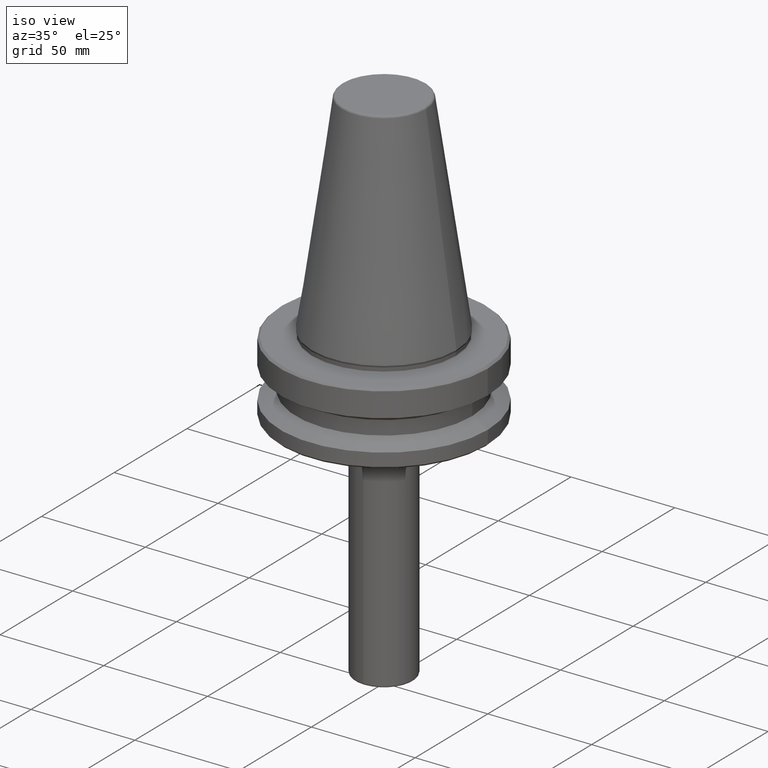
[diagram: clean part render]
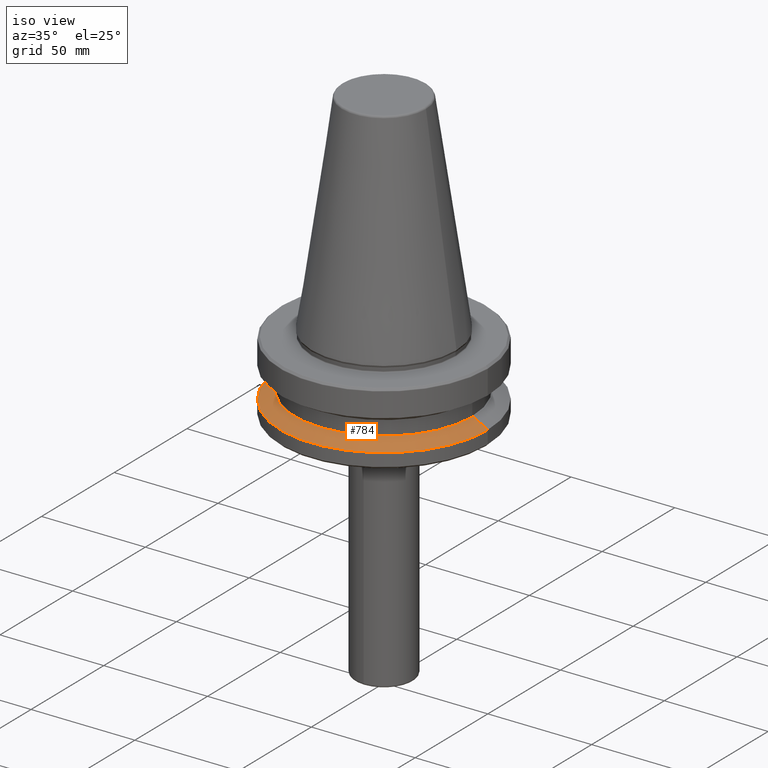
[diagram: same view with one face highlighted and labeled with its STEP entity id]
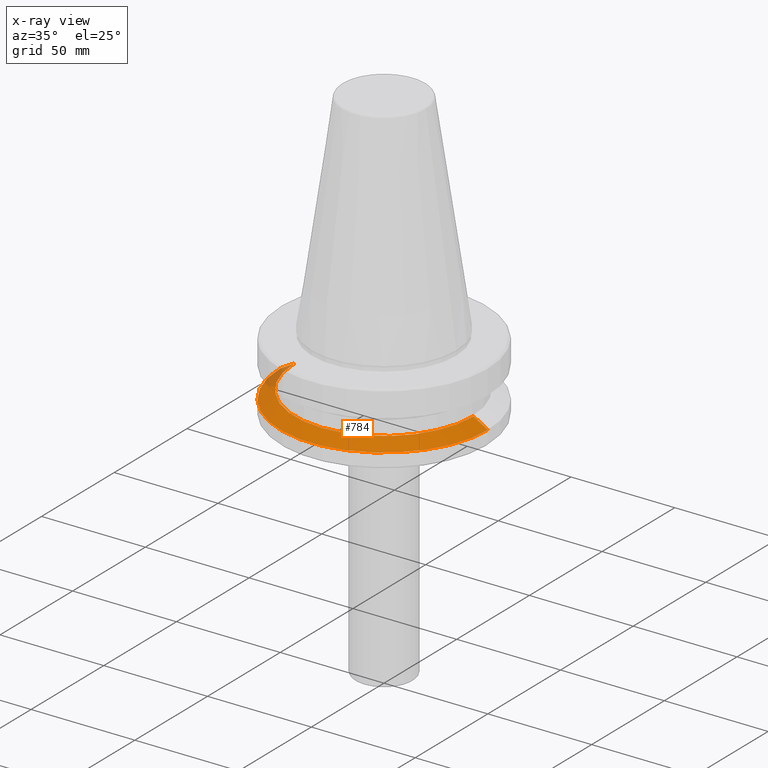
[diagram: x-ray of the same camera — body ghosted, the highlighted face saturated]
A machine part, iso view. The second image highlights one B-rep face of the part: STEP entity #784.
The next image is the same camera in x-ray: the body ghosted, the highlighted face saturated — about 4% of this face is hidden behind the body in this view.
In plain terms, the highlighted conical surface has half-angle 60 deg.
Its self-contained STEP definition (entity closure, byte-faithful):
#31 = ORIENTED_EDGE ( 'NONE', *, *, #615, .F. ) ;
#47 = DIRECTION ( 'NONE',  ( 0.8660254037844396000, 1.060575238724908000E-016, -0.4999999999999983900 ) ) ;
#79 = VERTEX_POINT ( 'NONE', #959 ) ;
#112 = ORIENTED_EDGE ( 'NONE', *, *, #603, .T. ) ;
#193 = CARTESIAN_POINT ( 'NONE',  ( 43.07217782649103600, 5.699027233244276000E-015, -26.70000000000000300 ) ) ;
#228 = AXIS2_PLACEMENT_3D ( 'NONE', #631, #257, #906 ) ;
#257 = DIRECTION ( 'NONE',  ( -0.0000000000000000000, -0.0000000000000000000, 1.000000000000000000 ) ) ;
#298 = DIRECTION ( 'NONE',  ( -1.000000000000000000, 0.0000000000000000000, 0.0000000000000000000 ) ) ;
#331 = EDGE_CURVE ( 'NONE', #862, #1073, #740, .T. ) ;
#384 = CARTESIAN_POINT ( 'NONE',  ( 43.07217782649103600, 5.274820470751785100E-015, -26.70000000000000300 ) ) ;
#394 = AXIS2_PLACEMENT_3D ( 'NONE', #1063, #506, #1156 ) ;
#404 = CIRCLE ( 'NONE', #394, 50.00000000000000000 ) ;
#430 = VECTOR ( 'NONE', #47, 1000.000000000000000 ) ;
#441 = VERTEX_POINT ( 'NONE', #871 ) ;
#472 = AXIS2_PLACEMENT_3D ( 'NONE', #845, #651, #298 ) ;
#506 = DIRECTION ( 'NONE',  ( -0.0000000000000000000, -0.0000000000000000000, 1.000000000000000000 ) ) ;
#603 = EDGE_CURVE ( 'NONE', #862, #79, #999, .T. ) ;
#615 = EDGE_CURVE ( 'NONE', #1073, #441, #953, .T. ) ;
#631 = CARTESIAN_POINT ( 'NONE',  ( 0.0000000000000000000, 0.0000000000000000000, -26.70000000000000300 ) ) ;
#651 = DIRECTION ( 'NONE',  ( 0.0000000000000000000, 0.0000000000000000000, -1.000000000000000000 ) ) ;
#740 = CIRCLE ( 'NONE', #228, 43.07217782649103600 ) ;
#784 = ADVANCED_FACE ( 'NONE', ( #926 ), #899, .T. ) ;
#802 = CARTESIAN_POINT ( 'NONE',  ( -43.07217782649103600, 0.0000000000000000000, -26.70000000000000300 ) ) ;
#816 = EDGE_LOOP ( 'NONE', ( #31, #1006, #112, #1054 ) ) ;
#845 = CARTESIAN_POINT ( 'NONE',  ( 0.0000000000000000000, 0.0000000000000000000, -26.70000000000000300 ) ) ;
#855 = CARTESIAN_POINT ( 'NONE',  ( -43.07217782649103600, 0.0000000000000000000, -26.70000000000000300 ) ) ;
#862 = VERTEX_POINT ( 'NONE', #855 ) ;
#871 = CARTESIAN_POINT ( 'NONE',  ( 50.00000000000000000, 0.0000000000000000000, -30.69977999677324500 ) ) ;
#899 = CONICAL_SURFACE ( 'NONE', #472, 43.07217782649103600, 1.047197551196599600 ) ;
#906 = DIRECTION ( 'NONE',  ( 1.000000000000000000, 0.0000000000000000000, 0.0000000000000000000 ) ) ;
#926 = FACE_OUTER_BOUND ( 'NONE', #816, .T. ) ;
#953 = LINE ( 'NONE', #384, #430 ) ;
#959 = CARTESIAN_POINT ( 'NONE',  ( -50.00000000000000000, 6.123233995736766100E-015, -30.69977999677324500 ) ) ;
#999 = LINE ( 'NONE', #802, #1043 ) ;
#1006 = ORIENTED_EDGE ( 'NONE', *, *, #331, .F. ) ;
#1030 = EDGE_CURVE ( 'NONE', #79, #441, #404, .T. ) ;
#1033 = DIRECTION ( 'NONE',  ( -0.8660254037844396000, 0.0000000000000000000, -0.4999999999999983900 ) ) ;
#1043 = VECTOR ( 'NONE', #1033, 1000.000000000000000 ) ;
#1054 = ORIENTED_EDGE ( 'NONE', *, *, #1030, .T. ) ;
#1063 = CARTESIAN_POINT ( 'NONE',  ( 0.0000000000000000000, 0.0000000000000000000, -30.69977999677324500 ) ) ;
#1073 = VERTEX_POINT ( 'NONE', #193 ) ;
#1156 = DIRECTION ( 'NONE',  ( 1.000000000000000000, 0.0000000000000000000, 0.0000000000000000000 ) ) ;